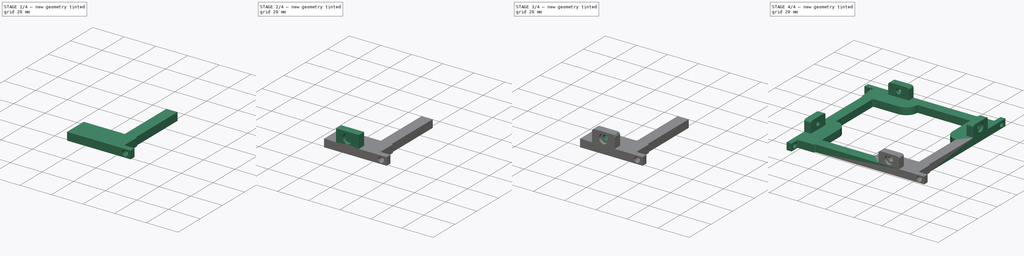
[diagram: build sequence overview — one tinted view per stage of 4, left to right]
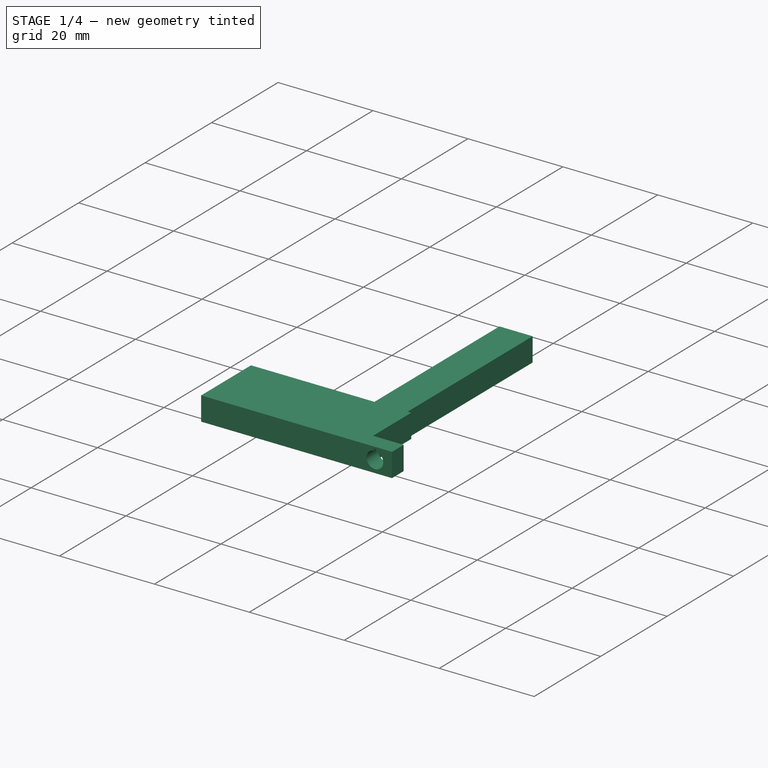
[diagram: stage 1 of 4 — iso view after this stage's code; geometry added in this stage tinted green]
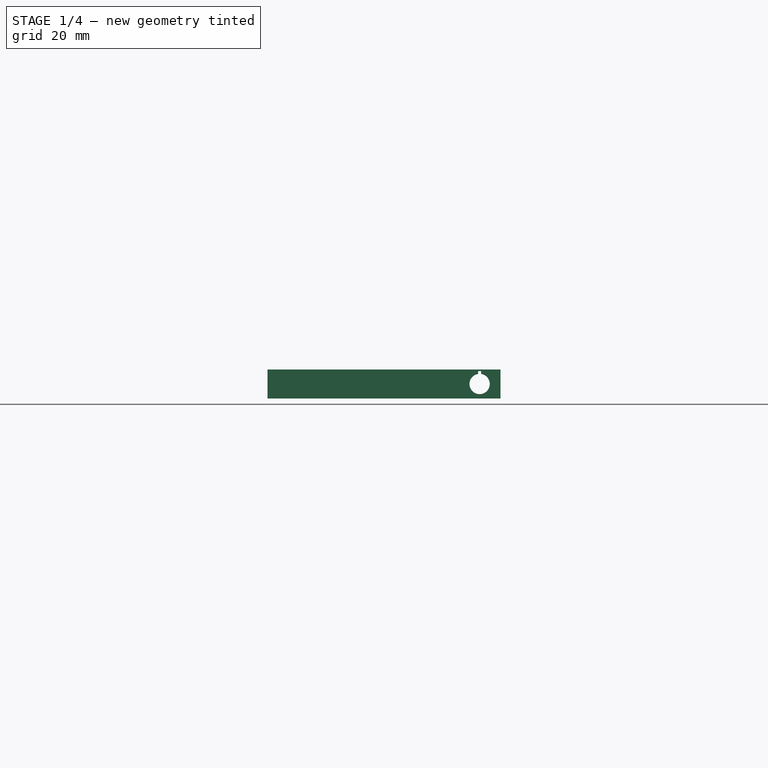
[diagram: stage 1 of 4 — front view after this stage's code; geometry added in this stage tinted green]
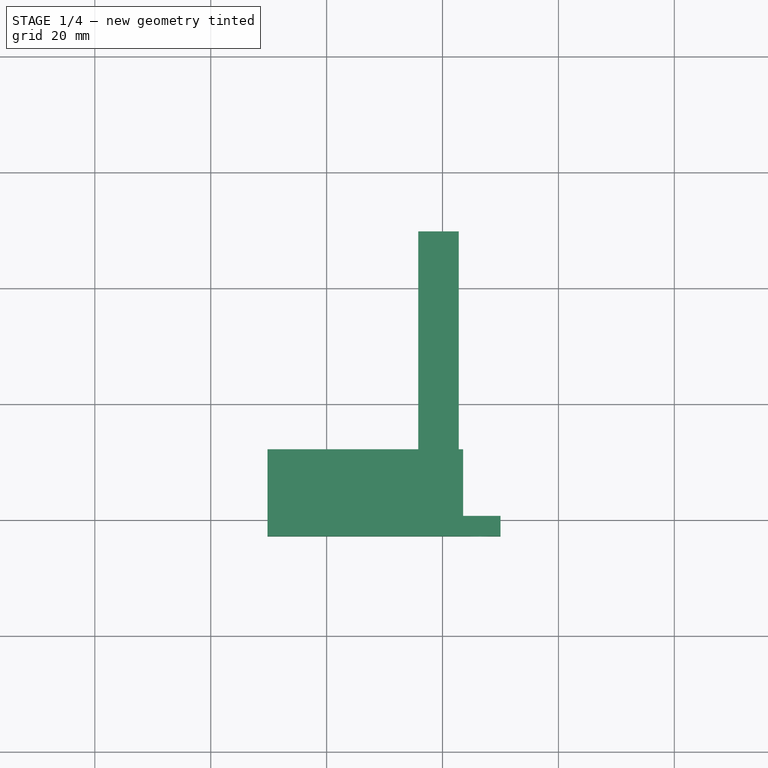
[diagram: stage 1 of 4 — top view after this stage's code; geometry added in this stage tinted green]
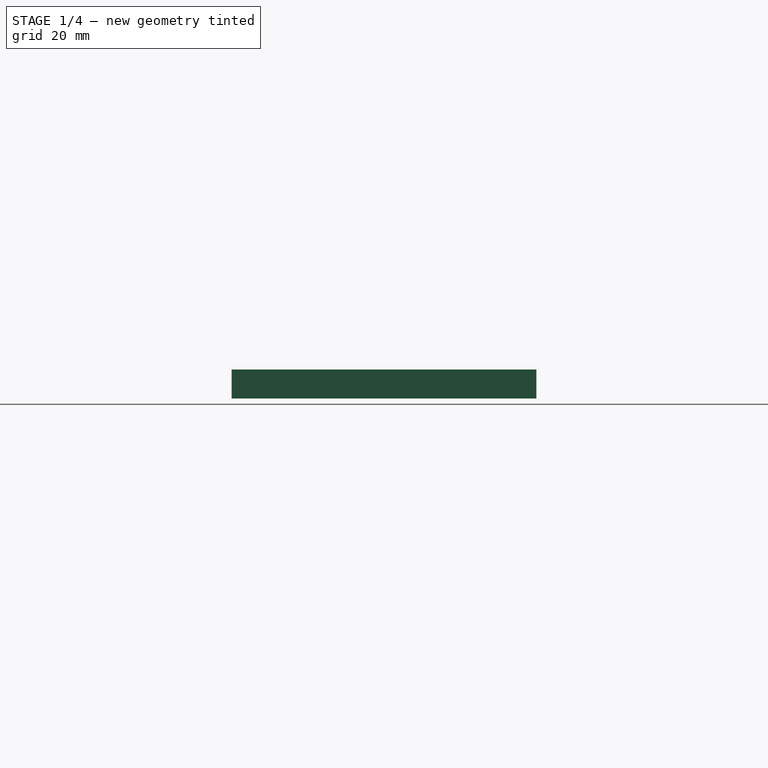
[diagram: stage 1 of 4 — right view after this stage's code; geometry added in this stage tinted green]
FCSTD DOCUMENT  (FreeCAD 0.21R33771 (Git))
Label: 4_wheel_support
License: All rights reserved
LicenseURL: http://en.wikipedia.org/wiki/All_rights_reserved
objects: Sketcher::SketchObject×5, PartDesign::Pocket×3, PartDesign::Fillet×3, PartDesign::Pad×2, Part::Feature×2, PartDesign::PolarPattern×1, PartDesign::Body×1
note: 25 computed .brp shape members not serialized (recipe doc carries the construction recipe); baked Part::Feature solids carry a one-line shape summary decoded from their .brp

FEATURE [Sketcher::SketchObject] Sketch
  FullyConstrained = true
  MapMode = 5
  Support = -> [XY_Plane]
  sketch-geometry (10):
    g0: LineSegment StartX=9.8 StartY=-27.8 StartZ=0 EndX=35.8 EndY=-27.8 EndZ=0
    g1: LineSegment StartX=50 StartY=-39.3 StartZ=0 EndX=50 EndY=-42.8 EndZ=0
    g2: LineSegment StartX=9.8 StartY=-42.8 StartZ=0 EndX=50 EndY=-42.8 EndZ=0
    g3: LineSegment StartX=35.8 StartY=9.8 StartZ=0 EndX=42.8 EndY=9.8 EndZ=0
    g4: LineSegment StartX=9.8 StartY=-27.8 StartZ=0 EndX=9.8 EndY=-42.8 EndZ=0
    g5: LineSegment StartX=35.8 StartY=9.8 StartZ=0 EndX=35.8 EndY=-27.8 EndZ=0
    g6: LineSegment StartX=42.8 StartY=-27.8 StartZ=0 EndX=43.55 EndY=-27.8 EndZ=0
    g7: LineSegment StartX=43.55 StartY=-27.8 StartZ=0 EndX=43.55 EndY=-39.3 EndZ=0
    g8: LineSegment StartX=42.8 StartY=9.8 StartZ=0 EndX=42.8 EndY=-27.8 EndZ=0
    g9: LineSegment StartX=43.55 StartY=-39.3 StartZ=0 EndX=50 EndY=-39.3 EndZ=0
  constraints (30):
    c: Horizontal(g0)
    c: Vertical(g1)
    c: Coincident(g2,g1)
    c: Horizontal(g2)
    c: DistanceY(g1,g-1) = 42.8
    c: DistanceX(g-1,g1) = 50
    c: DistanceY(g1,g3) = 52.6
    c: Horizontal(g3)
    c: Coincident(g4,g0)
    c: Coincident(g4,g2)
    c: Vertical(g4)
    c: DistanceX(g3,g1) = 7.2
    c: Coincident(g5,g3)
    c: Coincident(g5,g0)
    c: Vertical(g5)
    c: DistanceX(g3,g3) = 7
    c: DistanceX(g0,g0) = 26
    c: DistanceY(g4,g4) = 15
    c: DistanceY(g1,g1) = 3.5
    c: Horizontal(g6)
    c: Coincident(g7,g6)
    c: Vertical(g7)
    c: Horizontal(g0,g6)
    c: Coincident(g8,g3)
    c: Coincident(g8,g6)
    c: Vertical(g8)
    c: Coincident(g9,g7)
    c: Coincident(g9,g1)
    c: Horizontal(g9)
    c: DistanceX(g6,g6) = 0.75
FEATURE [PartDesign::Pad] Pad  label="base"
  Direction = (0,0,1)
  Length = 5
  Length2 = 10
  Profile = -> Sketch
  ReferenceAxis = -> Sketch [N_Axis]
  Type = 0
FEATURE [Part::Feature] Part__Feature  label="Body001"
  Placement = pos=(24.8,-28.8,26.2) rot=(1,0,0;2.0944rad)
  shape: bbox 38.71 x 37.33 x 44.32 mm, 41 faces (baked)
FEATURE [Part::Feature] Part__Feature001  label="Body002"
  Placement = pos=(28.7,24.8,26.2) rot=(0.654654,0.654654,0.377964;2.41886rad)
  shape: bbox 37.33 x 38.71 x 44.32 mm, 41 faces (baked)
FEATURE [Sketcher::SketchObject] Sketch001
  FullyConstrained = true
  MapMode = 5
  Placement = pos=(0,-39.3,0) rot=(0,0.707107,0.707107;3.14159rad)
  sketch-geometry (4):
    g0: LineSegment StartX=-46.65 StartY=4.23205 StartZ=0 EndX=-46.65 EndY=4.73205 EndZ=0
    g1: LineSegment StartX=-46.65 StartY=4.73205 StartZ=0 EndX=-46.15 EndY=4.73205 EndZ=0
    g2: LineSegment StartX=-46.15 StartY=4.73205 StartZ=0 EndX=-46.15 EndY=4.23205 EndZ=0
    g3: ArcOfCircle CenterX=-46.4 CenterY=2.5 CenterZ=0 NormalX=0 NormalY=0 NormalZ=1 AngleXU=0 Radius=1.75 StartAngle=1.71414 EndAngle=7.71063
  constraints (13):
    c: Vertical(g0)
    c: Coincident(g1,g0)
    c: Horizontal(g1)
    c: Coincident(g2,g1)
    c: Vertical(g2)
    c: Horizontal(g2,g0)
    c: DistanceX(g1,g1) = 0.5
    c: DistanceY(g2,g2) = 0.5
    c: Coincident(g3,g2)
    c: Coincident(g3,g0)
    c: DistanceX(g3,g-1) = 46.4
    c: DistanceY(g-1,g3) = 2.5
    c: Diameter(g3) = 3.5
FEATURE [PartDesign::Pocket] Pocket  label="attachment"
  BaseFeature = -> Pad
  Direction = (0,-1,2e-16)
  Length = 5
  Length2 = 5
  Profile = -> Sketch001
  ReferenceAxis = -> Sketch001 [N_Axis]
  Type = 1
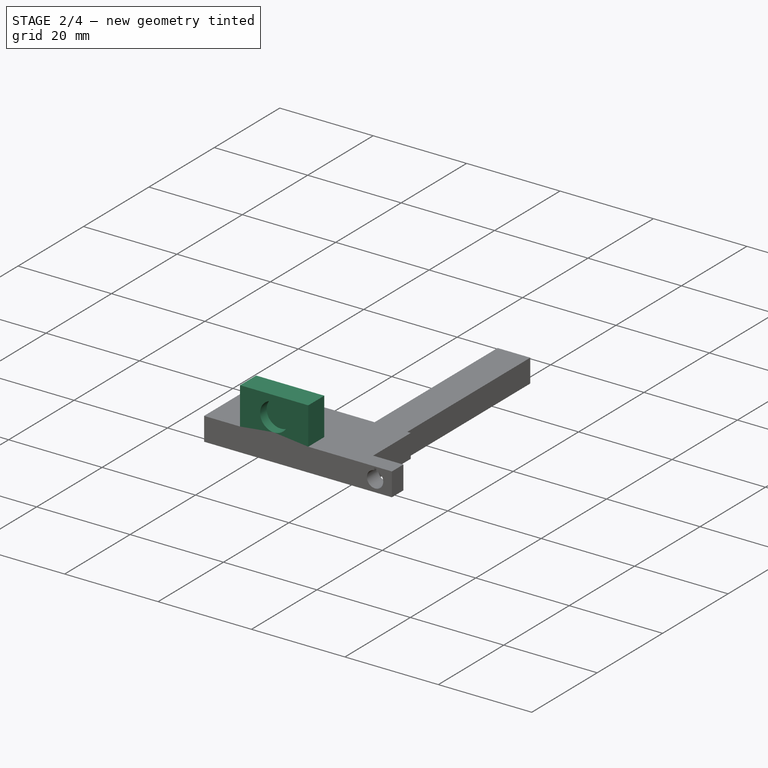
[diagram: stage 2 of 4 — iso view after this stage's code; geometry added in this stage tinted green]
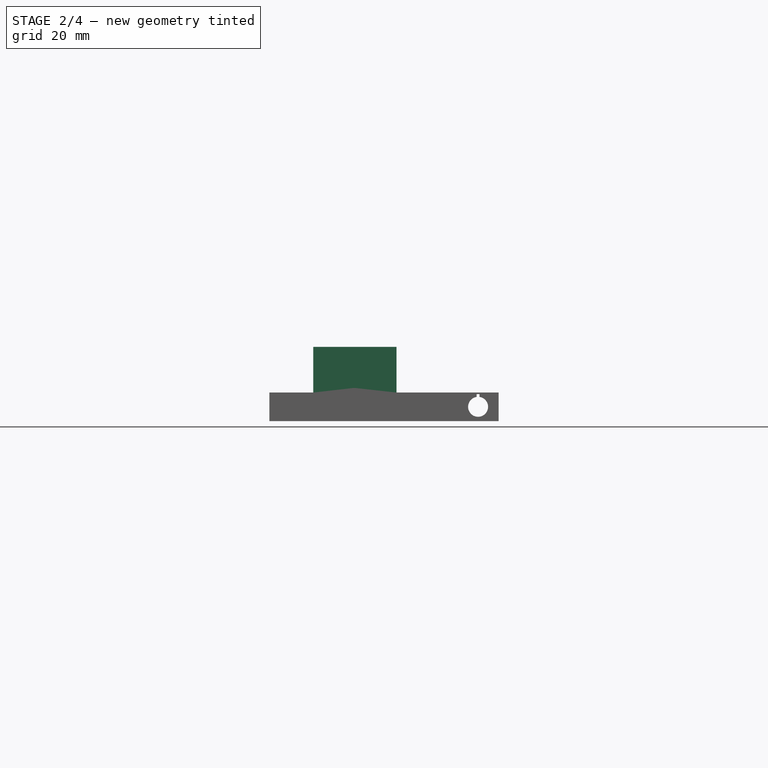
[diagram: stage 2 of 4 — front view after this stage's code; geometry added in this stage tinted green]
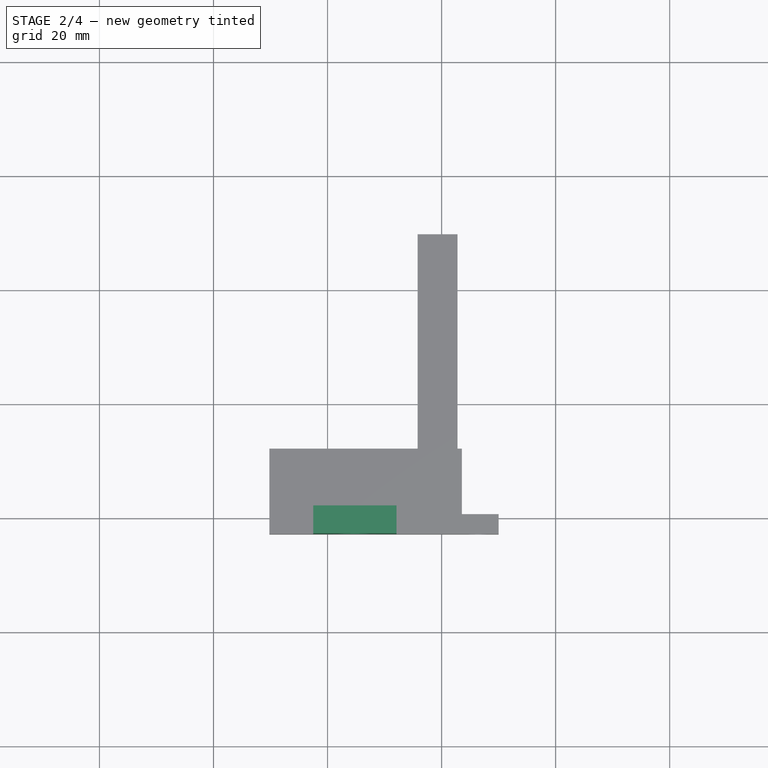
[diagram: stage 2 of 4 — top view after this stage's code; geometry added in this stage tinted green]
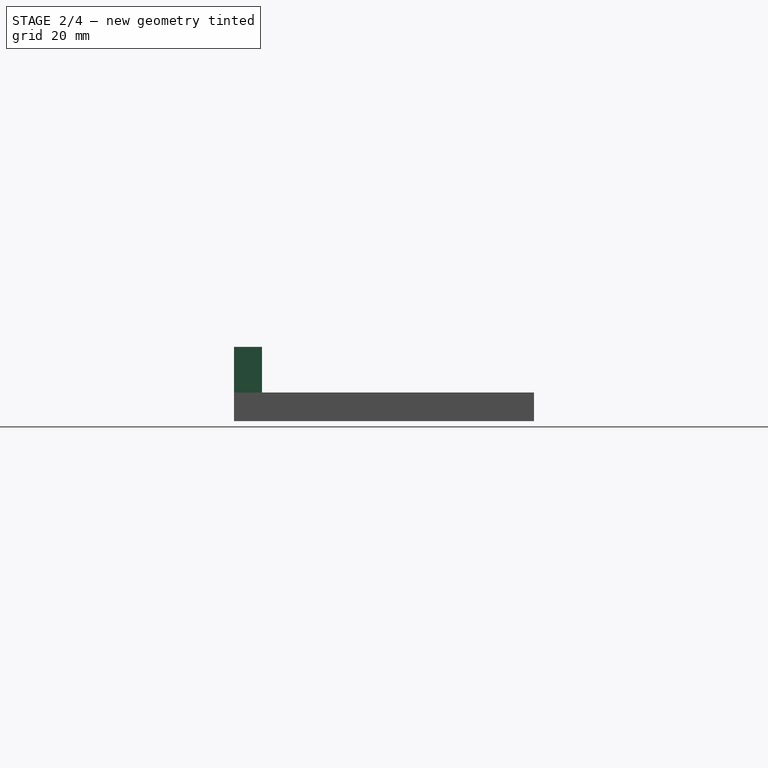
[diagram: stage 2 of 4 — right view after this stage's code; geometry added in this stage tinted green]
FEATURE [Sketcher::SketchObject] Sketch002
  FullyConstrained = true
  MapMode = 5
  Placement = pos=(0,0,5) rot=(0,0,1;0rad)
  Support = -> [Pocket]
  sketch-geometry (4):
    g0: LineSegment StartX=17.5 StartY=-37.9 StartZ=0 EndX=32.1 EndY=-37.9 EndZ=0
    g1: LineSegment StartX=32.1 StartY=-37.9 StartZ=0 EndX=32.1 EndY=-42.8 EndZ=0
    g2: LineSegment StartX=32.1 StartY=-42.8 StartZ=0 EndX=17.5 EndY=-42.8 EndZ=0
    g3: LineSegment StartX=17.5 StartY=-42.8 StartZ=0 EndX=17.5 EndY=-37.9 EndZ=0
  constraints (12):
    c: Coincident(g0,g1)
    c: Coincident(g1,g2)
    c: Coincident(g2,g3)
    c: Coincident(g3,g0)
    c: Horizontal(g0)
    c: Horizontal(g2)
    c: Vertical(g1)
    c: Vertical(g3)
    c: DistanceX(g0,g0) = 14.6
    c: DistanceX(g-1,g0) = 17.5
    c: DistanceY(g1,g1) = 4.9
    c: DistanceY(g2,g-1) = 42.8
FEATURE [PartDesign::Pad] Pad001  label="latch"
  BaseFeature = -> Pocket
  Direction = (0,0,1)
  Length = 8
  Length2 = 10
  Profile = -> Sketch002
  ReferenceAxis = -> Sketch002 [N_Axis]
  Refine = true
  Type = 0
FEATURE [Sketcher::SketchObject] Sketch003
  FullyConstrained = true
  MapMode = 5
  Placement = pos=(0,-42.8,0) rot=(1,0,0;1.5708rad)
  sketch-geometry (1):
    g0: Circle CenterX=24.8 CenterY=8.8 CenterZ=0 NormalX=0 NormalY=0 NormalZ=1 AngleXU=0 Radius=3
  constraints (3):
    c: Diameter(g0) = 6
    c: DistanceX(g-1,g0) = 24.8
    c: DistanceY(g-1,g0) = 8.8
FEATURE [PartDesign::Pocket] Pocket001
  BaseFeature = -> Pad001
  Direction = (0,1,-2e-16)
  Length = 2
  Length2 = 5
  Profile = -> Sketch003
  ReferenceAxis = -> Sketch003 [N_Axis]
  Type = 0
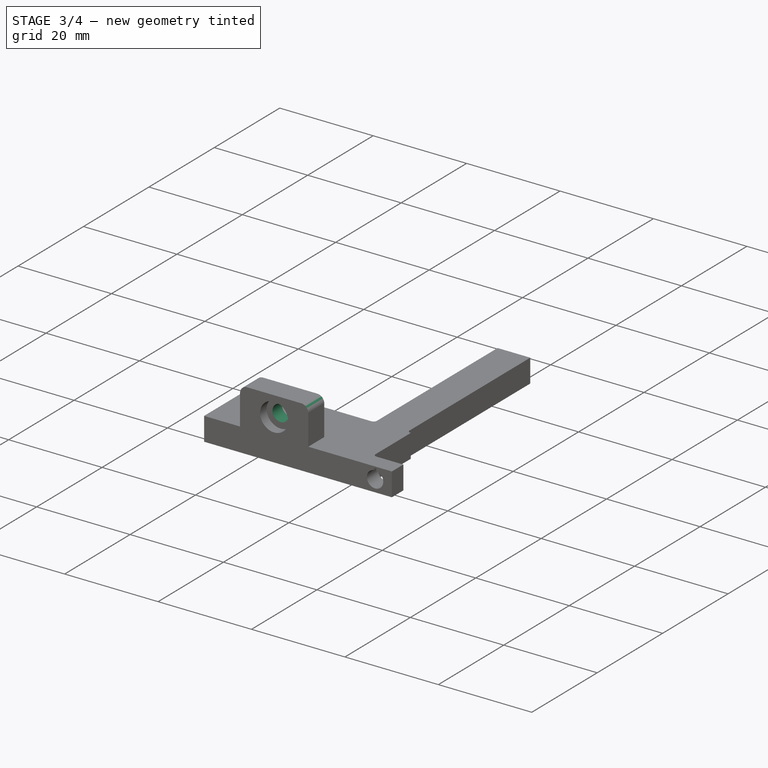
[diagram: stage 3 of 4 — iso view after this stage's code; geometry added in this stage tinted green]
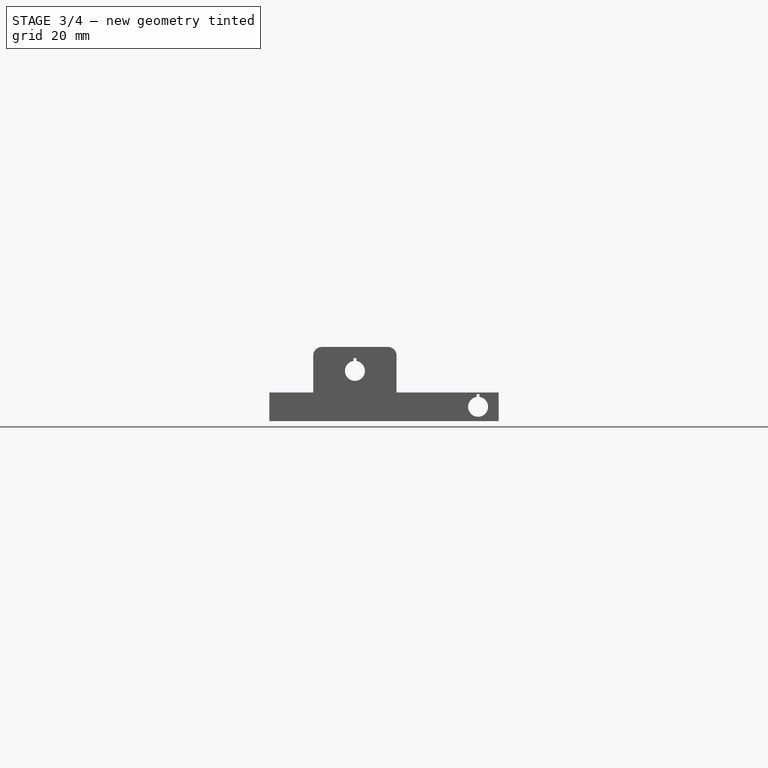
[diagram: stage 3 of 4 — front view after this stage's code; geometry added in this stage tinted green]
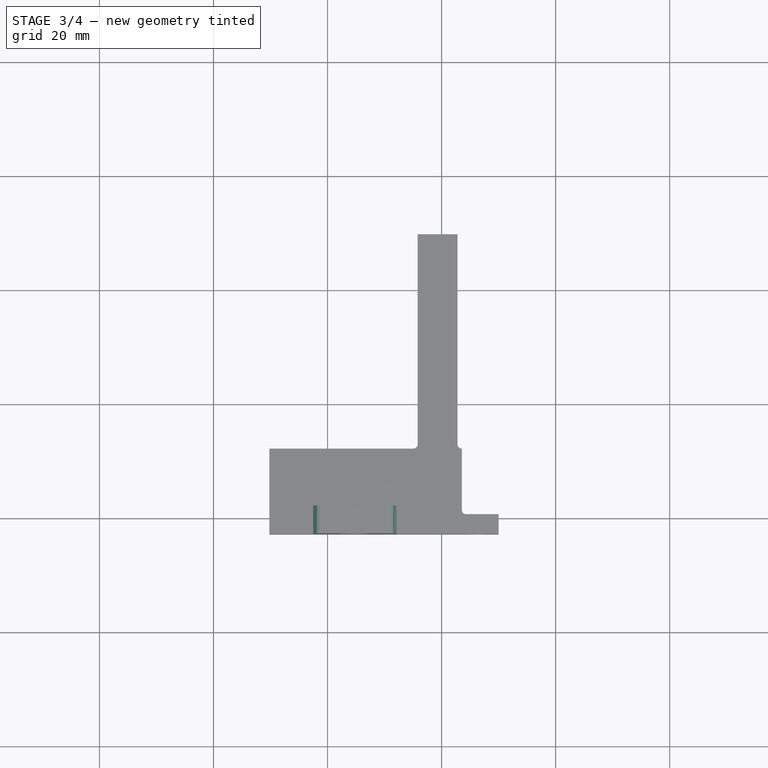
[diagram: stage 3 of 4 — top view after this stage's code; geometry added in this stage tinted green]
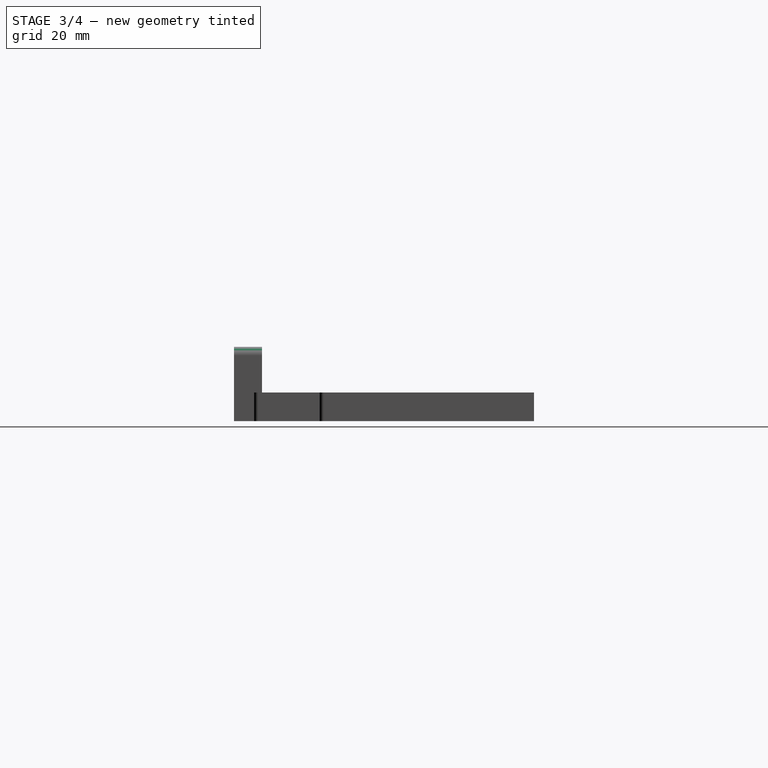
[diagram: stage 3 of 4 — right view after this stage's code; geometry added in this stage tinted green]
FEATURE [Sketcher::SketchObject] Sketch004
  FullyConstrained = true
  MapMode = 5
  Placement = pos=(0,-40.8,0) rot=(1,0,0;1.5708rad)
  Support = -> [Pocket001]
  sketch-geometry (4):
    g0: ArcOfCircle CenterX=24.8 CenterY=8.8 CenterZ=0 NormalX=0 NormalY=0 NormalZ=1 AngleXU=0 Radius=1.75 StartAngle=1.71414 EndAngle=7.71063
    g1: LineSegment StartX=24.55 StartY=10.5321 StartZ=0 EndX=24.55 EndY=11.0321 EndZ=0
    g2: LineSegment StartX=24.55 StartY=11.0321 StartZ=0 EndX=25.05 EndY=11.0321 EndZ=0
    g3: LineSegment StartX=25.05 StartY=11.0321 StartZ=0 EndX=25.05 EndY=10.5321 EndZ=0
  constraints (13):
    c: Diameter(g0) = 3.5
    c: DistanceY(g-1,g0) = 8.8
    c: DistanceX(g-1,g0) = 24.8
    c: Horizontal(g0,g0)
    c: Coincident(g1,g0)
    c: Vertical(g1)
    c: Coincident(g2,g1)
    c: Horizontal(g2)
    c: Coincident(g3,g2)
    c: Coincident(g3,g0)
    c: Vertical(g3)
    c: DistanceX(g2,g2) = 0.5
    c: DistanceY(g3,g3) = 0.5
FEATURE [PartDesign::Pocket] Pocket002  label="screwhole"
  BaseFeature = -> Pocket001
  Direction = (0,1,-2e-16)
  Length = 5
  Length2 = 5
  Profile = -> Sketch004
  ReferenceAxis = -> Sketch004 [N_Axis]
  Type = 1
FEATURE [PartDesign::Fillet] Fillet
  Base = -> Pocket002 [Edge42,Edge40]
  BaseFeature = -> Pocket002
  Radius = 1.5
  SupportTransform = false
  UseAllEdges = false
FEATURE [PartDesign::Fillet] Fillet001
  Base = -> Fillet [Edge67,Edge65,Edge62]
  BaseFeature = -> Fillet
  Radius = 0.74
  SupportTransform = false
  UseAllEdges = false
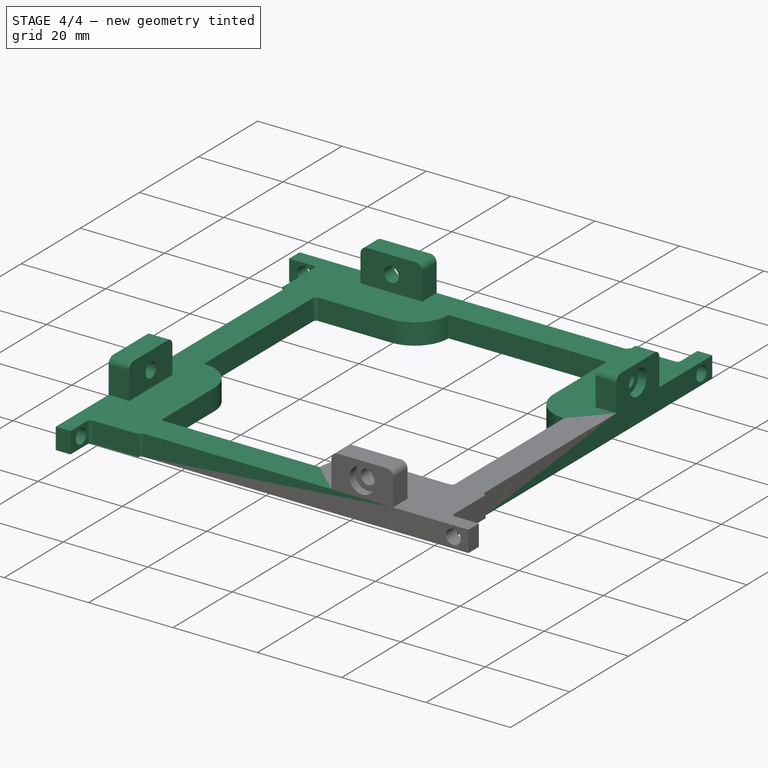
[diagram: stage 4 of 4 — iso view after this stage's code; geometry added in this stage tinted green]
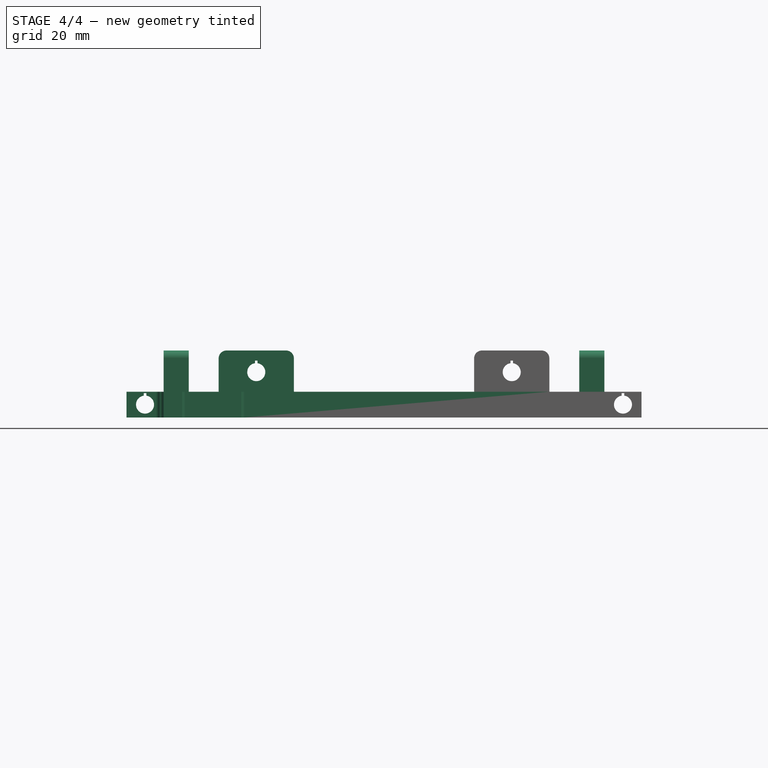
[diagram: stage 4 of 4 — front view after this stage's code; geometry added in this stage tinted green]
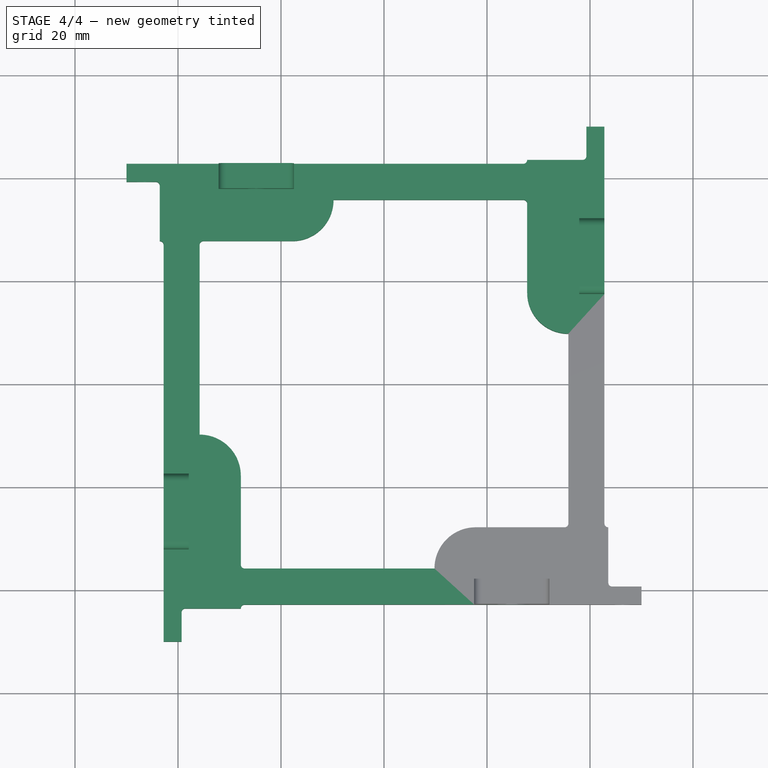
[diagram: stage 4 of 4 — top view after this stage's code; geometry added in this stage tinted green]
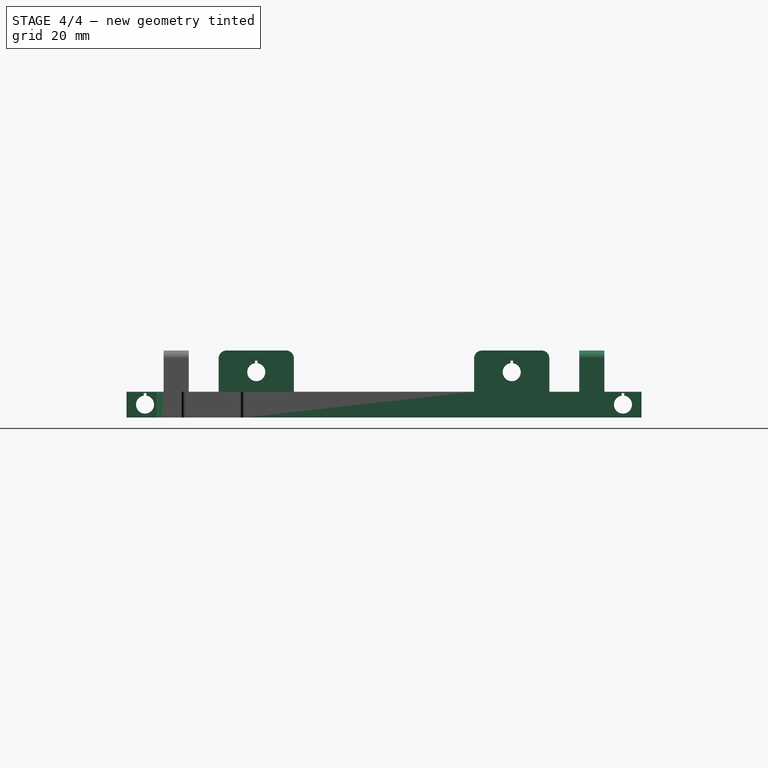
[diagram: stage 4 of 4 — right view after this stage's code; geometry added in this stage tinted green]
FEATURE [PartDesign::PolarPattern] PolarPattern
  Angle = 360
  Axis = -> Z_Axis
  BaseFeature = -> Fillet001
  Occurrences = 4
  Originals = -> [Pad,Pocket,Pad001,Pocket001,Pocket002,Fillet,Fillet001]
  Refine = true
FEATURE [PartDesign::Fillet] Fillet002
  Base = -> PolarPattern [Edge286,Edge295,Edge305,Edge279]
  BaseFeature = -> PolarPattern
  Radius = 7.99
  SupportTransform = false
  UseAllEdges = false
FEATURE [PartDesign::Body] Body
  Group = -> [Sketch,Pad,Sketch001,Pocket,Sketch002,Pad001,Sketch003,Pocket001,Sketch004,Pocket002,Fillet,Fillet001,PolarPattern,Fillet002]
  Origin = -> Origin
  Tip = -> Fillet002
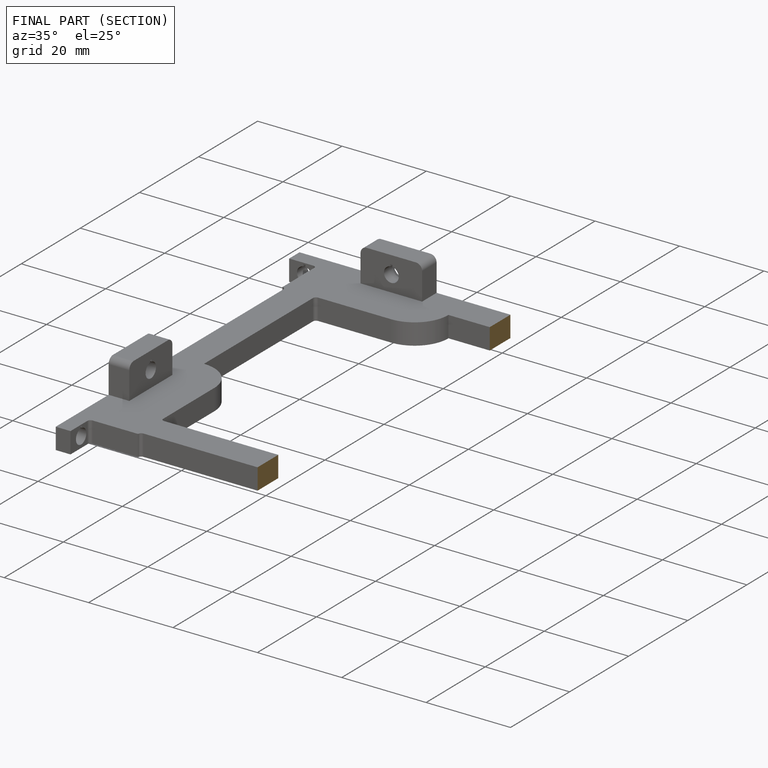
[diagram: finished part — half-section view (interior)]
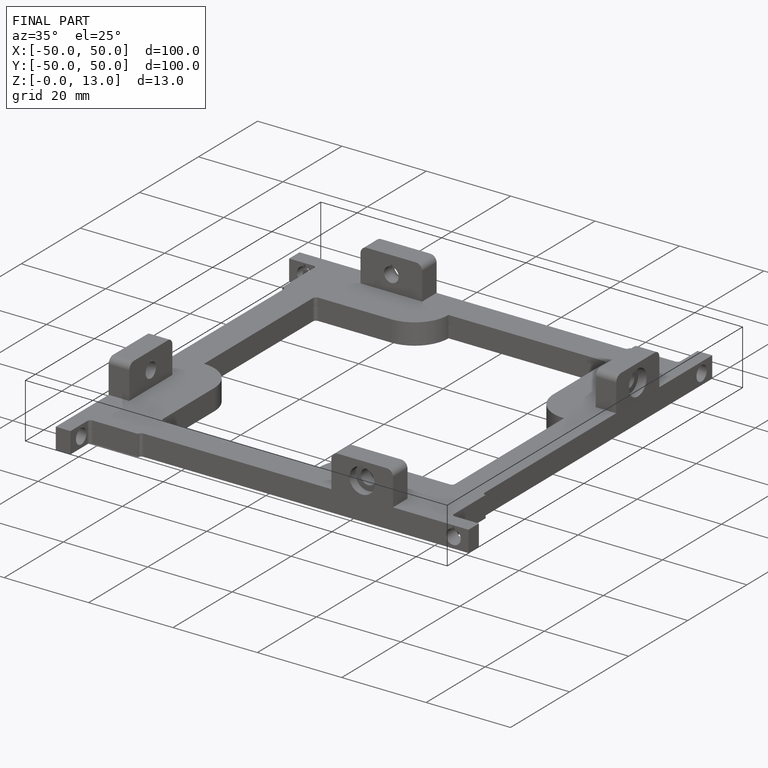
[diagram: finished part — iso view with bounding-box wireframe]
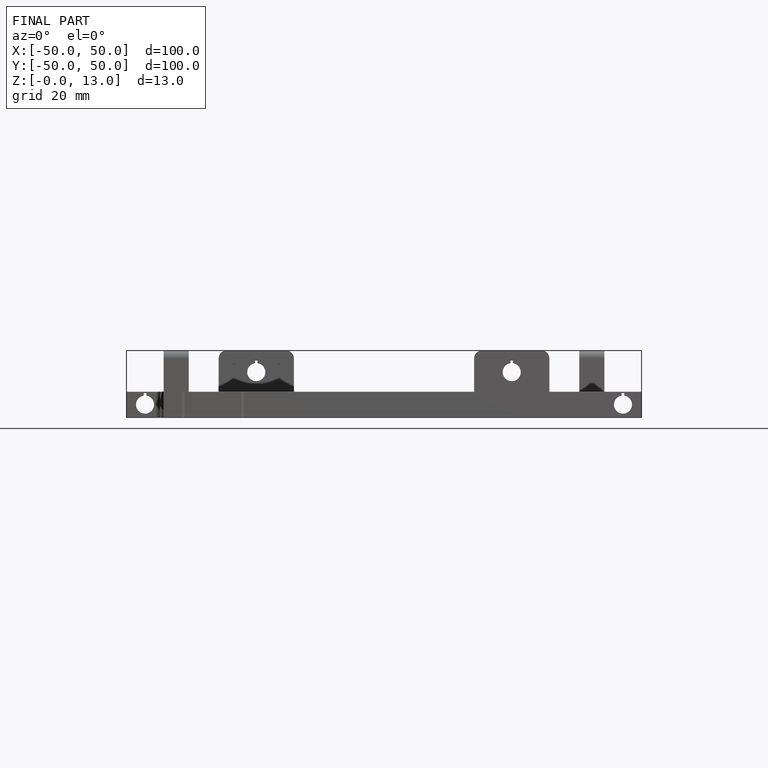
[diagram: finished part — front view with bounding-box wireframe]
